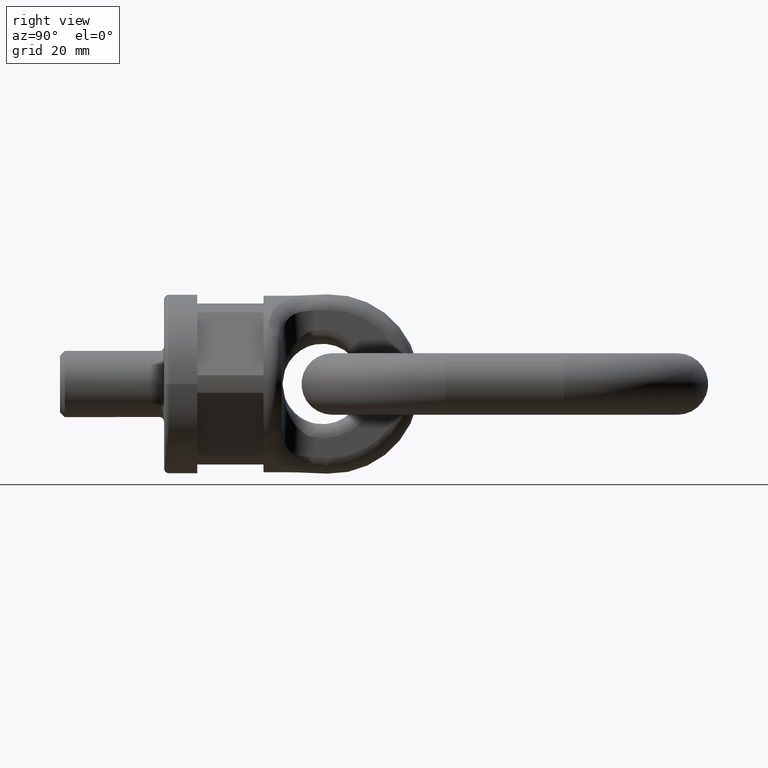
[diagram: clean part render]
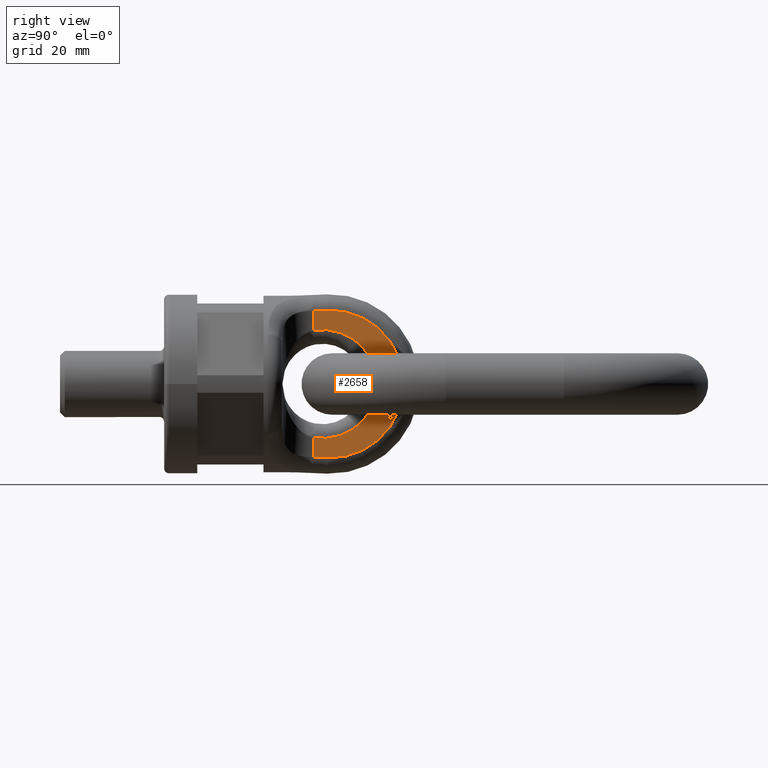
[diagram: same view with one face highlighted and labeled with its STEP entity id]
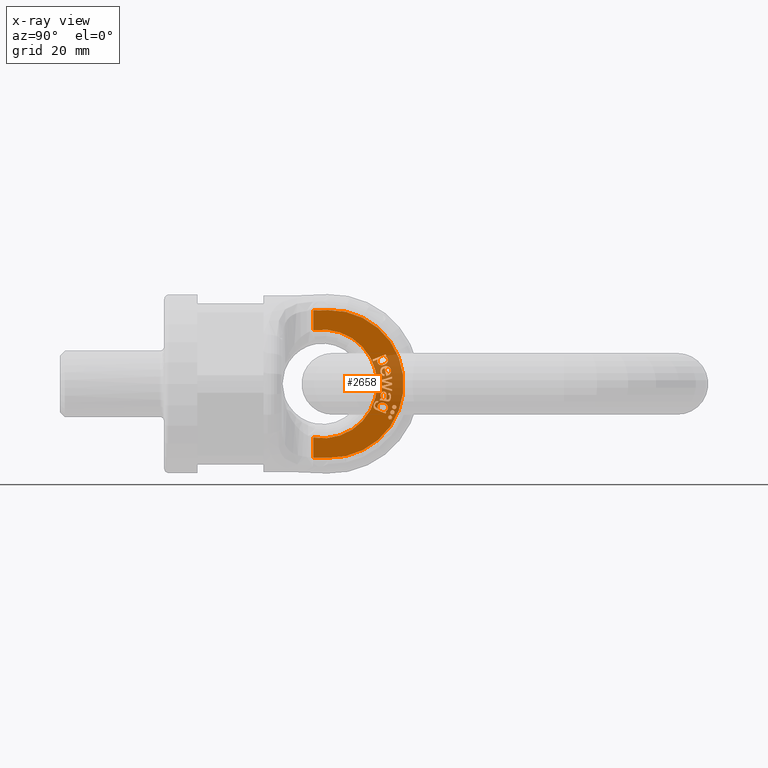
[diagram: x-ray of the same camera — body ghosted, the highlighted face saturated]
A machine part, right view. The second image highlights one B-rep face of the part: STEP entity #2658.
The next image is the same camera in x-ray: the body ghosted, the highlighted face saturated — about 22% of this face is hidden behind the body in this view.
In plain terms, the highlighted planar face has unit normal (1, -0, 0).
Its self-contained STEP definition (entity closure, byte-faithful):
#308=B_SPLINE_CURVE_WITH_KNOTS('',3,(#6660,#6661,#6662,#6663,#6664,#6665),
 .UNSPECIFIED.,.F.,.F.,(4,2,4),(0.,0.670501232539029,1.),.UNSPECIFIED.);
#309=B_SPLINE_CURVE_WITH_KNOTS('',3,(#6667,#6668,#6669,#6670),
 .UNSPECIFIED.,.F.,.F.,(4,4),(0.,1.),.UNSPECIFIED.);
#310=B_SPLINE_CURVE_WITH_KNOTS('',3,(#6672,#6673,#6674,#6675,#6676,#6677),
 .UNSPECIFIED.,.F.,.F.,(4,2,4),(0.,0.470198675496691,1.),.UNSPECIFIED.);
#311=B_SPLINE_CURVE_WITH_KNOTS('',3,(#6679,#6680,#6681,#6682),
 .UNSPECIFIED.,.F.,.F.,(4,4),(0.,1.),.UNSPECIFIED.);
#312=B_SPLINE_CURVE_WITH_KNOTS('',3,(#6686,#6687,#6688,#6689),
 .UNSPECIFIED.,.F.,.F.,(4,4),(0.,1.),.UNSPECIFIED.);
#313=B_SPLINE_CURVE_WITH_KNOTS('',3,(#6691,#6692,#6693,#6694,#6695,#6696),
 .UNSPECIFIED.,.F.,.F.,(4,2,4),(0.,0.44419642857143,1.),.UNSPECIFIED.);
#314=B_SPLINE_CURVE_WITH_KNOTS('',3,(#6698,#6699,#6700,#6701,#6702,#6703),
 .UNSPECIFIED.,.F.,.F.,(4,2,4),(0.,0.499999999999989,1.),.UNSPECIFIED.);
#315=B_SPLINE_CURVE_WITH_KNOTS('',3,(#6705,#6706,#6707,#6708,#6709,#6710,
#6711,#6712,#6713,#6714,#6715,#6716,#6717,#6718),.UNSPECIFIED.,.F.,.F.,
(4,2,2,2,2,2,4),(0.,0.149537296690972,0.323681996634885,0.497826696578798,
0.672812675266404,0.84779865395401,1.),.UNSPECIFIED.);
#316=B_SPLINE_CURVE_WITH_KNOTS('',3,(#6723,#6724,#6725,#6726),
 .UNSPECIFIED.,.F.,.F.,(4,4),(0.,1.),.UNSPECIFIED.);
#317=B_SPLINE_CURVE_WITH_KNOTS('',3,(#6731,#6732,#6733,#6734),
 .UNSPECIFIED.,.F.,.F.,(4,4),(0.,1.),.UNSPECIFIED.);
#318=B_SPLINE_CURVE_WITH_KNOTS('',3,(#6736,#6737,#6738,#6739,#6740,#6741),
 .UNSPECIFIED.,.F.,.F.,(4,2,4),(0.,0.565320665083137,1.),.UNSPECIFIED.);
#319=B_SPLINE_CURVE_WITH_KNOTS('',3,(#6743,#6744,#6745,#6746),
 .UNSPECIFIED.,.F.,.F.,(4,4),(0.,1.),.UNSPECIFIED.);
#320=B_SPLINE_CURVE_WITH_KNOTS('',3,(#6750,#6751,#6752,#6753),
 .UNSPECIFIED.,.F.,.F.,(4,4),(0.,1.),.UNSPECIFIED.);
#321=B_SPLINE_CURVE_WITH_KNOTS('',3,(#6755,#6756,#6757,#6758,#6759,#6760),
 .UNSPECIFIED.,.F.,.F.,(4,2,4),(0.,0.429530201342282,1.),.UNSPECIFIED.);
#322=B_SPLINE_CURVE_WITH_KNOTS('',3,(#6762,#6763,#6764,#6765,#6766,#6767,
#6768,#6769,#6770,#6771,#6772,#6773),.UNSPECIFIED.,.F.,.F.,(4,2,2,2,2,4),
(0.,0.253866185683644,0.504362466247593,0.754858746811536,0.877429373405769,
1.),.UNSPECIFIED.);
#323=B_SPLINE_CURVE_WITH_KNOTS('',3,(#6787,#6788,#6789,#6790),
 .UNSPECIFIED.,.F.,.F.,(4,4),(0.,1.),.UNSPECIFIED.);
#324=B_SPLINE_CURVE_WITH_KNOTS('',3,(#6794,#6795,#6796,#6797),
 .UNSPECIFIED.,.F.,.F.,(4,4),(0.,1.),.UNSPECIFIED.);
#325=B_SPLINE_CURVE_WITH_KNOTS('',3,(#6807,#6808,#6809,#6810),
 .UNSPECIFIED.,.F.,.F.,(4,4),(0.,1.),.UNSPECIFIED.);
#326=B_SPLINE_CURVE_WITH_KNOTS('',3,(#6812,#6813,#6814,#6815),
 .UNSPECIFIED.,.F.,.F.,(4,4),(0.,1.),.UNSPECIFIED.);
#327=B_SPLINE_CURVE_WITH_KNOTS('',3,(#6837,#6838,#6839,#6840),
 .UNSPECIFIED.,.F.,.F.,(4,4),(0.,1.),.UNSPECIFIED.);
#328=B_SPLINE_CURVE_WITH_KNOTS('',3,(#6845,#6846,#6847,#6848),
 .UNSPECIFIED.,.F.,.F.,(4,4),(0.,1.),.UNSPECIFIED.);
#329=B_SPLINE_CURVE_WITH_KNOTS('',3,(#6853,#6854,#6855,#6856),
 .UNSPECIFIED.,.F.,.F.,(4,4),(0.,1.),.UNSPECIFIED.);
#330=B_SPLINE_CURVE_WITH_KNOTS('',3,(#6858,#6859,#6860,#6861,#6862,#6863,
#6864,#6865,#6866,#6867),.UNSPECIFIED.,.F.,.F.,(4,2,2,2,4),(0.,0.296954694318529,
0.533565653962701,0.771641518085901,1.),.UNSPECIFIED.);
#331=B_SPLINE_CURVE_WITH_KNOTS('',3,(#6869,#6870,#6871,#6872),
 .UNSPECIFIED.,.F.,.F.,(4,4),(0.,1.),.UNSPECIFIED.);
#332=B_SPLINE_CURVE_WITH_KNOTS('',3,(#6876,#6877,#6878,#6879),
 .UNSPECIFIED.,.F.,.F.,(4,4),(0.,1.),.UNSPECIFIED.);
#333=B_SPLINE_CURVE_WITH_KNOTS('',3,(#6881,#6882,#6883,#6884),
 .UNSPECIFIED.,.F.,.F.,(4,4),(0.,1.),.UNSPECIFIED.);
#334=B_SPLINE_CURVE_WITH_KNOTS('',3,(#6886,#6887,#6888,#6889),
 .UNSPECIFIED.,.F.,.F.,(4,4),(0.,1.),.UNSPECIFIED.);
#335=B_SPLINE_CURVE_WITH_KNOTS('',3,(#6891,#6892,#6893,#6894),
 .UNSPECIFIED.,.F.,.F.,(4,4),(0.,1.),.UNSPECIFIED.);
#336=B_SPLINE_CURVE_WITH_KNOTS('',3,(#6896,#6897,#6898,#6899,#6900,#6901),
 .UNSPECIFIED.,.F.,.F.,(4,2,4),(0.,0.440217391304353,1.),.UNSPECIFIED.);
#337=B_SPLINE_CURVE_WITH_KNOTS('',3,(#6903,#6904,#6905,#6906),
 .UNSPECIFIED.,.F.,.F.,(4,4),(0.,1.),.UNSPECIFIED.);
#338=B_SPLINE_CURVE_WITH_KNOTS('',3,(#6910,#6911,#6912,#6913),
 .UNSPECIFIED.,.F.,.F.,(4,4),(0.,1.),.UNSPECIFIED.);
#339=B_SPLINE_CURVE_WITH_KNOTS('',3,(#6915,#6916,#6917,#6918,#6919,#6920),
 .UNSPECIFIED.,.F.,.F.,(4,2,4),(0.,0.523876404494381,1.),.UNSPECIFIED.);
#340=B_SPLINE_CURVE_WITH_KNOTS('',3,(#6922,#6923,#6924,#6925),
 .UNSPECIFIED.,.F.,.F.,(4,4),(0.,1.),.UNSPECIFIED.);
#341=B_SPLINE_CURVE_WITH_KNOTS('',3,(#6927,#6928,#6929,#6930,#6931,#6932,
#6933,#6934),.UNSPECIFIED.,.F.,.F.,(4,2,2,4),(0.,0.269230769230767,0.527644230769239,
1.),.UNSPECIFIED.);
#342=B_SPLINE_CURVE_WITH_KNOTS('',3,(#6938,#6939,#6940,#6941),
 .UNSPECIFIED.,.F.,.F.,(4,4),(0.,1.),.UNSPECIFIED.);
#343=B_SPLINE_CURVE_WITH_KNOTS('',3,(#6943,#6944,#6945,#6946),
 .UNSPECIFIED.,.F.,.F.,(4,4),(0.,1.),.UNSPECIFIED.);
#344=B_SPLINE_CURVE_WITH_KNOTS('',3,(#6948,#6949,#6950,#6951,#6952,#6953,
#6954,#6955,#6956,#6957),.UNSPECIFIED.,.F.,.F.,(4,2,2,2,4),(0.,0.245990994549328,
0.507925849856484,0.769860705163647,1.),.UNSPECIFIED.);
#2057=LINE('',#6657,#2313);
#2058=LINE('',#6684,#2314);
#2059=LINE('',#6720,#2315);
#2060=LINE('',#6722,#2316);
#2061=LINE('',#6729,#2317);
#2062=LINE('',#6748,#2318);
#2063=LINE('',#6780,#2319);
#2064=LINE('',#6785,#2320);
#2065=LINE('',#6798,#2321);
#2066=LINE('',#6801,#2322);
#2067=LINE('',#6803,#2323);
#2068=LINE('',#6805,#2324);
#2069=LINE('',#6817,#2325);
#2070=LINE('',#6819,#2326);
#2071=LINE('',#6821,#2327);
#2072=LINE('',#6823,#2328);
#2073=LINE('',#6825,#2329);
#2074=LINE('',#6827,#2330);
#2075=LINE('',#6829,#2331);
#2076=LINE('',#6831,#2332);
#2077=LINE('',#6833,#2333);
#2078=LINE('',#6835,#2334);
#2079=LINE('',#6842,#2335);
#2080=LINE('',#6844,#2336);
#2081=LINE('',#6851,#2337);
#2082=LINE('',#6874,#2338);
#2083=LINE('',#6908,#2339);
#2084=LINE('',#6935,#2340);
#2085=LINE('',#6959,#2341);
#2086=LINE('',#6961,#2342);
#2087=LINE('',#6963,#2343);
#2088=LINE('',#6965,#2344);
#2089=LINE('',#6967,#2345);
#2090=LINE('',#6969,#2346);
#2313=VECTOR('',#5907,1.);
#2314=VECTOR('',#5908,1.);
#2315=VECTOR('',#5909,1.);
#2316=VECTOR('',#5910,1.);
#2317=VECTOR('',#5911,1.);
#2318=VECTOR('',#5912,1.);
#2319=VECTOR('',#5919,1.);
#2320=VECTOR('',#5922,1.);
#2321=VECTOR('',#5925,1.);
#2322=VECTOR('',#5926,1.);
#2323=VECTOR('',#5927,1.);
#2324=VECTOR('',#5928,1.);
#2325=VECTOR('',#5929,1.);
#2326=VECTOR('',#5930,1.);
#2327=VECTOR('',#5931,1.);
#2328=VECTOR('',#5932,1.);
#2329=VECTOR('',#5933,1.);
#2330=VECTOR('',#5934,1.);
#2331=VECTOR('',#5935,1.);
#2332=VECTOR('',#5936,1.);
#2333=VECTOR('',#5937,1.);
#2334=VECTOR('',#5938,1.);
#2335=VECTOR('',#5939,1.);
#2336=VECTOR('',#5940,1.);
#2337=VECTOR('',#5941,1.);
#2338=VECTOR('',#5942,1.);
#2339=VECTOR('',#5943,1.);
#2340=VECTOR('',#5944,1.);
#2341=VECTOR('',#5945,1.);
#2342=VECTOR('',#5946,1.);
#2343=VECTOR('',#5947,1.);
#2344=VECTOR('',#5948,1.);
#2345=VECTOR('',#5949,1.);
#2346=VECTOR('',#5950,1.);
#2658=ADVANCED_FACE('',(#2999,#3000,#3001,#3002,#3003,#3004,#3005,#3006,
#3007),#2890,.T.);
#2890=PLANE('',#5641);
#2999=FACE_BOUND('',#3085,.T.);
#3000=FACE_BOUND('',#3086,.T.);
#3001=FACE_BOUND('',#3087,.T.);
#3002=FACE_BOUND('',#3088,.T.);
#3003=FACE_BOUND('',#3089,.T.);
#3004=FACE_BOUND('',#3090,.T.);
#3005=FACE_BOUND('',#3091,.T.);
#3006=FACE_BOUND('',#3092,.T.);
#3007=FACE_BOUND('',#3093,.T.);
#3085=EDGE_LOOP('',(#3429,#3430,#3431,#3432,#3433,#3434,#3435,#3436,#3437,
#3438,#3439,#3440));
#3086=EDGE_LOOP('',(#3441,#3442,#3443,#3444,#3445,#3446,#3447,#3448,#3449));
#3087=EDGE_LOOP('',(#3450));
#3088=EDGE_LOOP('',(#3451));
#3089=EDGE_LOOP('',(#3452));
#3090=EDGE_LOOP('',(#3453,#3454,#3455,#3456,#3457,#3458));
#3091=EDGE_LOOP('',(#3459,#3460,#3461,#3462,#3463,#3464,#3465,#3466,#3467,
#3468,#3469,#3470,#3471,#3472,#3473,#3474,#3475,#3476,#3477));
#3092=EDGE_LOOP('',(#3478,#3479,#3480,#3481,#3482,#3483,#3484,#3485,#3486,
#3487,#3488,#3489,#3490,#3491,#3492,#3493,#3494));
#3093=EDGE_LOOP('',(#3495,#3496,#3497,#3498,#3499,#3500,#3501,#3502,#3503,
#3504));
#3429=ORIENTED_EDGE('',*,*,#4976,.T.);
#3430=ORIENTED_EDGE('',*,*,#4977,.T.);
#3431=ORIENTED_EDGE('',*,*,#4978,.T.);
#3432=ORIENTED_EDGE('',*,*,#4979,.T.);
#3433=ORIENTED_EDGE('',*,*,#4980,.T.);
#3434=ORIENTED_EDGE('',*,*,#4981,.T.);
#3435=ORIENTED_EDGE('',*,*,#4982,.T.);
#3436=ORIENTED_EDGE('',*,*,#4983,.T.);
#3437=ORIENTED_EDGE('',*,*,#4984,.T.);
#3438=ORIENTED_EDGE('',*,*,#4985,.T.);
#3439=ORIENTED_EDGE('',*,*,#4986,.T.);
#3440=ORIENTED_EDGE('',*,*,#4987,.T.);
#3441=ORIENTED_EDGE('',*,*,#4988,.T.);
#3442=ORIENTED_EDGE('',*,*,#4989,.T.);
#3443=ORIENTED_EDGE('',*,*,#4990,.T.);
#3444=ORIENTED_EDGE('',*,*,#4991,.T.);
#3445=ORIENTED_EDGE('',*,*,#4992,.T.);
#3446=ORIENTED_EDGE('',*,*,#4993,.T.);
#3447=ORIENTED_EDGE('',*,*,#4994,.T.);
#3448=ORIENTED_EDGE('',*,*,#4995,.T.);
#3449=ORIENTED_EDGE('',*,*,#4996,.T.);
#3450=ORIENTED_EDGE('',*,*,#4997,.T.);
#3451=ORIENTED_EDGE('',*,*,#4998,.T.);
#3452=ORIENTED_EDGE('',*,*,#4999,.T.);
#3453=ORIENTED_EDGE('',*,*,#5000,.T.);
#3454=ORIENTED_EDGE('',*,*,#5001,.T.);
#3455=ORIENTED_EDGE('',*,*,#5002,.T.);
#3456=ORIENTED_EDGE('',*,*,#5003,.T.);
#3457=ORIENTED_EDGE('',*,*,#5004,.T.);
#3458=ORIENTED_EDGE('',*,*,#5005,.T.);
#3459=ORIENTED_EDGE('',*,*,#5006,.T.);
#3460=ORIENTED_EDGE('',*,*,#5007,.T.);
#3461=ORIENTED_EDGE('',*,*,#5008,.T.);
#3462=ORIENTED_EDGE('',*,*,#5009,.T.);
#3463=ORIENTED_EDGE('',*,*,#5010,.T.);
#3464=ORIENTED_EDGE('',*,*,#5011,.T.);
#3465=ORIENTED_EDGE('',*,*,#5012,.T.);
#3466=ORIENTED_EDGE('',*,*,#5013,.T.);
#3467=ORIENTED_EDGE('',*,*,#5014,.T.);
#3468=ORIENTED_EDGE('',*,*,#5015,.T.);
#3469=ORIENTED_EDGE('',*,*,#5016,.T.);
#3470=ORIENTED_EDGE('',*,*,#5017,.T.);
#3471=ORIENTED_EDGE('',*,*,#5018,.T.);
#3472=ORIENTED_EDGE('',*,*,#5019,.T.);
#3473=ORIENTED_EDGE('',*,*,#5020,.T.);
#3474=ORIENTED_EDGE('',*,*,#5021,.T.);
#3475=ORIENTED_EDGE('',*,*,#5022,.T.);
#3476=ORIENTED_EDGE('',*,*,#5023,.T.);
#3477=ORIENTED_EDGE('',*,*,#5024,.T.);
#3478=ORIENTED_EDGE('',*,*,#5025,.T.);
#3479=ORIENTED_EDGE('',*,*,#5026,.T.);
#3480=ORIENTED_EDGE('',*,*,#5027,.T.);
#3481=ORIENTED_EDGE('',*,*,#5028,.T.);
#3482=ORIENTED_EDGE('',*,*,#5029,.T.);
#3483=ORIENTED_EDGE('',*,*,#5030,.T.);
#3484=ORIENTED_EDGE('',*,*,#5031,.T.);
#3485=ORIENTED_EDGE('',*,*,#5032,.T.);
#3486=ORIENTED_EDGE('',*,*,#5033,.T.);
#3487=ORIENTED_EDGE('',*,*,#5034,.T.);
#3488=ORIENTED_EDGE('',*,*,#5035,.T.);
#3489=ORIENTED_EDGE('',*,*,#5036,.T.);
#3490=ORIENTED_EDGE('',*,*,#5037,.T.);
#3491=ORIENTED_EDGE('',*,*,#5038,.T.);
#3492=ORIENTED_EDGE('',*,*,#5039,.T.);
#3493=ORIENTED_EDGE('',*,*,#5040,.T.);
#3494=ORIENTED_EDGE('',*,*,#5041,.T.);
#3495=ORIENTED_EDGE('',*,*,#5042,.T.);
#3496=ORIENTED_EDGE('',*,*,#5043,.T.);
#3497=ORIENTED_EDGE('',*,*,#5044,.T.);
#3498=ORIENTED_EDGE('',*,*,#5045,.T.);
#3499=ORIENTED_EDGE('',*,*,#5046,.T.);
#3500=ORIENTED_EDGE('',*,*,#5047,.T.);
#3501=ORIENTED_EDGE('',*,*,#5048,.T.);
#3502=ORIENTED_EDGE('',*,*,#5049,.T.);
#3503=ORIENTED_EDGE('',*,*,#5050,.T.);
#3504=ORIENTED_EDGE('',*,*,#5051,.T.);
#4566=VERTEX_POINT('',#6658);
#4567=VERTEX_POINT('',#6659);
#4568=VERTEX_POINT('',#6666);
#4569=VERTEX_POINT('',#6671);
#4570=VERTEX_POINT('',#6678);
#4571=VERTEX_POINT('',#6683);
#4572=VERTEX_POINT('',#6685);
#4573=VERTEX_POINT('',#6690);
#4574=VERTEX_POINT('',#6697);
#4575=VERTEX_POINT('',#6704);
#4576=VERTEX_POINT('',#6719);
#4577=VERTEX_POINT('',#6721);
#4578=VERTEX_POINT('',#6727);
#4579=VERTEX_POINT('',#6728);
#4580=VERTEX_POINT('',#6730);
#4581=VERTEX_POINT('',#6735);
#4582=VERTEX_POINT('',#6742);
#4583=VERTEX_POINT('',#6747);
#4584=VERTEX_POINT('',#6749);
#4585=VERTEX_POINT('',#6754);
#4586=VERTEX_POINT('',#6761);
#4587=VERTEX_POINT('',#6775);
#4588=VERTEX_POINT('',#6777);
#4589=VERTEX_POINT('',#6779);
#4590=VERTEX_POINT('',#6781);
#4591=VERTEX_POINT('',#6782);
#4592=VERTEX_POINT('',#6784);
#4593=VERTEX_POINT('',#6786);
#4594=VERTEX_POINT('',#6791);
#4595=VERTEX_POINT('',#6793);
#4596=VERTEX_POINT('',#6799);
#4597=VERTEX_POINT('',#6800);
#4598=VERTEX_POINT('',#6802);
#4599=VERTEX_POINT('',#6804);
#4600=VERTEX_POINT('',#6806);
#4601=VERTEX_POINT('',#6811);
#4602=VERTEX_POINT('',#6816);
#4603=VERTEX_POINT('',#6818);
#4604=VERTEX_POINT('',#6820);
#4605=VERTEX_POINT('',#6822);
#4606=VERTEX_POINT('',#6824);
#4607=VERTEX_POINT('',#6826);
#4608=VERTEX_POINT('',#6828);
#4609=VERTEX_POINT('',#6830);
#4610=VERTEX_POINT('',#6832);
#4611=VERTEX_POINT('',#6834);
#4612=VERTEX_POINT('',#6836);
#4613=VERTEX_POINT('',#6841);
#4614=VERTEX_POINT('',#6843);
#4615=VERTEX_POINT('',#6849);
#4616=VERTEX_POINT('',#6850);
#4617=VERTEX_POINT('',#6852);
#4618=VERTEX_POINT('',#6857);
#4619=VERTEX_POINT('',#6868);
#4620=VERTEX_POINT('',#6873);
#4621=VERTEX_POINT('',#6875);
#4622=VERTEX_POINT('',#6880);
#4623=VERTEX_POINT('',#6885);
#4624=VERTEX_POINT('',#6890);
#4625=VERTEX_POINT('',#6895);
#4626=VERTEX_POINT('',#6902);
#4627=VERTEX_POINT('',#6907);
#4628=VERTEX_POINT('',#6909);
#4629=VERTEX_POINT('',#6914);
#4630=VERTEX_POINT('',#6921);
#4631=VERTEX_POINT('',#6926);
#4632=VERTEX_POINT('',#6936);
#4633=VERTEX_POINT('',#6937);
#4634=VERTEX_POINT('',#6942);
#4635=VERTEX_POINT('',#6947);
#4636=VERTEX_POINT('',#6958);
#4637=VERTEX_POINT('',#6960);
#4638=VERTEX_POINT('',#6962);
#4639=VERTEX_POINT('',#6964);
#4640=VERTEX_POINT('',#6966);
#4641=VERTEX_POINT('',#6968);
#4976=EDGE_CURVE('',#4566,#4567,#2057,.T.);
#4977=EDGE_CURVE('',#4567,#4568,#308,.T.);
#4978=EDGE_CURVE('',#4568,#4569,#309,.T.);
#4979=EDGE_CURVE('',#4569,#4570,#310,.T.);
#4980=EDGE_CURVE('',#4570,#4571,#311,.T.);
#4981=EDGE_CURVE('',#4571,#4572,#2058,.T.);
#4982=EDGE_CURVE('',#4572,#4573,#312,.T.);
#4983=EDGE_CURVE('',#4573,#4574,#313,.T.);
#4984=EDGE_CURVE('',#4574,#4575,#314,.T.);
#4985=EDGE_CURVE('',#4575,#4576,#315,.T.);
#4986=EDGE_CURVE('',#4576,#4577,#2059,.T.);
#4987=EDGE_CURVE('',#4577,#4566,#2060,.T.);
#4988=EDGE_CURVE('',#4578,#4579,#316,.T.);
#4989=EDGE_CURVE('',#4579,#4580,#2061,.T.);
#4990=EDGE_CURVE('',#4580,#4581,#317,.T.);
#4991=EDGE_CURVE('',#4581,#4582,#318,.T.);
#4992=EDGE_CURVE('',#4582,#4583,#319,.T.);
#4993=EDGE_CURVE('',#4583,#4584,#2062,.T.);
#4994=EDGE_CURVE('',#4584,#4585,#320,.T.);
#4995=EDGE_CURVE('',#4585,#4586,#321,.T.);
#4996=EDGE_CURVE('',#4586,#4578,#322,.T.);
#4997=EDGE_CURVE('',#4587,#4587,#5548,.T.);
#4998=EDGE_CURVE('',#4588,#4588,#5549,.T.);
#4999=EDGE_CURVE('',#4589,#4589,#5550,.T.);
#5000=EDGE_CURVE('',#4590,#4591,#2063,.T.);
#5001=EDGE_CURVE('',#4591,#4592,#5551,.T.);
#5002=EDGE_CURVE('',#4592,#4593,#2064,.T.);
#5003=EDGE_CURVE('',#4593,#4594,#323,.T.);
#5004=EDGE_CURVE('',#4594,#4595,#5552,.T.);
#5005=EDGE_CURVE('',#4595,#4590,#324,.T.);
#5006=EDGE_CURVE('',#4596,#4597,#2065,.T.);
#5007=EDGE_CURVE('',#4597,#4598,#2066,.T.);
#5008=EDGE_CURVE('',#4598,#4599,#2067,.T.);
#5009=EDGE_CURVE('',#4599,#4600,#2068,.T.);
#5010=EDGE_CURVE('',#4600,#4601,#325,.T.);
#5011=EDGE_CURVE('',#4601,#4602,#326,.T.);
#5012=EDGE_CURVE('',#4602,#4603,#2069,.T.);
#5013=EDGE_CURVE('',#4603,#4604,#2070,.T.);
#5014=EDGE_CURVE('',#4604,#4605,#2071,.T.);
#5015=EDGE_CURVE('',#4605,#4606,#2072,.T.);
#5016=EDGE_CURVE('',#4606,#4607,#2073,.T.);
#5017=EDGE_CURVE('',#4607,#4608,#2074,.T.);
#5018=EDGE_CURVE('',#4608,#4609,#2075,.T.);
#5019=EDGE_CURVE('',#4609,#4610,#2076,.T.);
#5020=EDGE_CURVE('',#4610,#4611,#2077,.T.);
#5021=EDGE_CURVE('',#4611,#4612,#2078,.T.);
#5022=EDGE_CURVE('',#4612,#4613,#327,.T.);
#5023=EDGE_CURVE('',#4613,#4614,#2079,.T.);
#5024=EDGE_CURVE('',#4614,#4596,#2080,.T.);
#5025=EDGE_CURVE('',#4615,#4616,#328,.T.);
#5026=EDGE_CURVE('',#4616,#4617,#2081,.T.);
#5027=EDGE_CURVE('',#4617,#4618,#329,.T.);
#5028=EDGE_CURVE('',#4618,#4619,#330,.T.);
#5029=EDGE_CURVE('',#4619,#4620,#331,.T.);
#5030=EDGE_CURVE('',#4620,#4621,#2082,.T.);
#5031=EDGE_CURVE('',#4621,#4622,#332,.T.);
#5032=EDGE_CURVE('',#4622,#4623,#333,.T.);
#5033=EDGE_CURVE('',#4623,#4624,#334,.T.);
#5034=EDGE_CURVE('',#4624,#4625,#335,.T.);
#5035=EDGE_CURVE('',#4625,#4626,#336,.T.);
#5036=EDGE_CURVE('',#4626,#4627,#337,.T.);
#5037=EDGE_CURVE('',#4627,#4628,#2083,.T.);
#5038=EDGE_CURVE('',#4628,#4629,#338,.T.);
#5039=EDGE_CURVE('',#4629,#4630,#339,.T.);
#5040=EDGE_CURVE('',#4630,#4631,#340,.T.);
#5041=EDGE_CURVE('',#4631,#4615,#341,.T.);
#5042=EDGE_CURVE('',#4632,#4633,#2084,.T.);
#5043=EDGE_CURVE('',#4633,#4634,#342,.T.);
#5044=EDGE_CURVE('',#4634,#4635,#343,.T.);
#5045=EDGE_CURVE('',#4635,#4636,#344,.T.);
#5046=EDGE_CURVE('',#4636,#4637,#2085,.T.);
#5047=EDGE_CURVE('',#4637,#4638,#2086,.T.);
#5048=EDGE_CURVE('',#4638,#4639,#2087,.T.);
#5049=EDGE_CURVE('',#4639,#4640,#2088,.T.);
#5050=EDGE_CURVE('',#4640,#4641,#2089,.T.);
#5051=EDGE_CURVE('',#4641,#4632,#2090,.T.);
#5548=CIRCLE('',#5636,0.450000000000001);
#5549=CIRCLE('',#5637,0.45);
#5550=CIRCLE('',#5638,0.45);
#5551=CIRCLE('',#5639,11.5);
#5552=CIRCLE('',#5640,15.612494995996);
#5636=AXIS2_PLACEMENT_3D('',#6774,#5913,#5914);
#5637=AXIS2_PLACEMENT_3D('',#6776,#5915,#5916);
#5638=AXIS2_PLACEMENT_3D('',#6778,#5917,#5918);
#5639=AXIS2_PLACEMENT_3D('',#6783,#5920,#5921);
#5640=AXIS2_PLACEMENT_3D('',#6792,#5923,#5924);
#5641=AXIS2_PLACEMENT_3D('',#6970,#5951,#5952);
#5907=DIRECTION('',(-1.32154319447918E-16,-0.368211928977285,-0.929741886417315));
#5908=DIRECTION('',(-1.80752887757182E-16,-0.503618570678019,-0.863926116787905));
#5909=DIRECTION('',(-1.32154319448104E-16,-0.368211928977806,-0.929741886417109));
#5910=DIRECTION('',(3.33692084889737E-16,0.929741886417306,-0.368211928977306));
#5911=DIRECTION('',(-7.21467361598864E-17,-0.201017182047663,0.979587715583253));
#5912=DIRECTION('',(2.91781443365318E-17,0.0812969326694324,-0.996689926074575));
#5913=DIRECTION('',(-1.,3.58908305374512E-16,0.));
#5914=DIRECTION('',(0.,0.999999999999995,0.));
#5915=DIRECTION('',(-1.,3.58908305374512E-16,0.));
#5916=DIRECTION('',(0.,0.999999999999997,0.));
#5917=DIRECTION('',(-1.,3.58908305374512E-16,0.));
#5918=DIRECTION('',(0.,0.999999999999997,0.));
#5919=DIRECTION('',(0.,0.,-1.));
#5920=DIRECTION('',(-1.,3.58908305374512E-16,0.));
#5921=DIRECTION('',(3.77113799125393E-16,1.,0.));
#5922=DIRECTION('',(0.,0.,-1.));
#5923=DIRECTION('',(1.,-3.58908305374512E-16,0.));
#5924=DIRECTION('',(3.33333681084611E-16,1.,0.));
#5925=DIRECTION('',(1.76465902991805E-19,0.000491674058107033,-0.999999879128303));
#5926=DIRECTION('',(-3.41947414782585E-16,-0.952743109206603,0.303777168100788));
#5927=DIRECTION('',(-1.76465903001513E-19,-0.000491674058134083,0.999999879128303));
#5928=DIRECTION('',(3.4660258210775E-16,0.965713461955355,0.259610302950794));
#5929=DIRECTION('',(-1.76465903408453E-19,-0.000491674059267909,0.999999879128302));
#5930=DIRECTION('',(-3.47147792690959E-16,-0.967232542386331,0.253892120690806));
#5931=DIRECTION('',(-1.76465903006843E-19,-0.000491674058148933,0.999999879128303));
#5932=DIRECTION('',(3.4251295630942E-16,0.954318836261024,0.298790158401183));
#5933=DIRECTION('',(1.76465903001513E-19,0.000491674058134082,-0.999999879128303));
#5934=DIRECTION('',(-3.45584888413145E-16,-0.962877936336791,-0.269937177350218));
#5935=DIRECTION('',(3.47763849994615E-16,0.968949017860515,-0.247260592871456));
#5936=DIRECTION('',(3.46018935028431E-16,0.964087288722306,-0.265585578908329));
#5937=DIRECTION('',(1.76465902990001E-19,0.000491674058102009,-0.999999879128303));
#5938=DIRECTION('',(-3.47180396192644E-16,-0.967323383142026,-0.253545799465631));
#5939=DIRECTION('',(1.76465903118525E-19,0.000491674058460106,-0.999999879128303));
#5940=DIRECTION('',(3.4382948948209E-16,0.957986996492914,-0.286811636009571));
#5941=DIRECTION('',(7.18009736580969E-17,0.200053809240147,0.979784911808968));
#5942=DIRECTION('',(-1.99009742077022E-17,-0.055448631056158,-0.998461541229305));
#5943=DIRECTION('',(1.15809186211702E-16,0.322670677935017,0.946511296076786));
#5944=DIRECTION('',(1.3248239099663E-16,0.369126010774223,-0.929379356436277));
#5945=DIRECTION('',(-1.32482390996601E-16,-0.369126010774142,0.929379356436309));
#5946=DIRECTION('',(-3.33561969868659E-16,-0.929379356436445,-0.369126010773801));
#5947=DIRECTION('',(-1.32482390996478E-16,-0.369126010773798,0.929379356436446));
#5948=DIRECTION('',(3.33561969868658E-16,0.929379356436444,0.369126010773803));
#5949=DIRECTION('',(1.32482390996468E-16,0.369126010773771,-0.929379356436457));
#5950=DIRECTION('',(-3.33561969868657E-16,-0.929379356436439,-0.369126010773815));
#5951=DIRECTION('',(1.,-3.58908305374512E-16,0.));
#5952=DIRECTION('',(3.59087759527199E-16,1.,0.));
#6657=CARTESIAN_POINT('',(6.50000000000001,57.074716069725,19.6822995267498));
#6658=CARTESIAN_POINT('',(6.5,46.932920482924,-5.92592068143586));
#6659=CARTESIAN_POINT('',(6.5,46.8055426854071,-6.24755196068323));
#6660=CARTESIAN_POINT('',(6.5,46.8055426854071,-6.24755196068323));
#6661=CARTESIAN_POINT('',(6.5,46.2232945048111,-6.01696029986552));
#6662=CARTESIAN_POINT('',(6.5,45.6410463242151,-5.7863686390478));
#6663=CARTESIAN_POINT('',(6.5,44.7726688293803,-5.44245926255864));
#6664=CARTESIAN_POINT('',(6.5,44.5701083795445,-5.32864171764067));
#6665=CARTESIAN_POINT('',(6.5,44.4511167941118,-5.21432434347617));
#6666=CARTESIAN_POINT('',(6.50000000000001,44.4511167941118,-5.21432434347617));
#6667=CARTESIAN_POINT('',(6.50000000000001,44.4511167941118,-5.21432434347617));
#6668=CARTESIAN_POINT('',(6.50000000000001,44.3328387481161,-5.1002895571313));
#6669=CARTESIAN_POINT('',(6.50000000000001,44.264071112842,-4.95294874637929));
#6670=CARTESIAN_POINT('',(6.50000000000001,44.2442388192263,-4.77375397117159));
#6671=CARTESIAN_POINT('',(6.50000000000001,44.2442388192263,-4.77375397117159));
#6672=CARTESIAN_POINT('',(6.50000000000001,44.2442388192263,-4.77375397117159));
#6673=CARTESIAN_POINT('',(6.50000000000001,44.2239805207051,-4.59355057816853));
#6674=CARTESIAN_POINT('',(6.50000000000001,44.2548942773903,-4.40085693401134));
#6675=CARTESIAN_POINT('',(6.50000000000001,44.4285651345014,-3.96233482867181));
#6676=CARTESIAN_POINT('',(6.50000000000001,44.5559981544769,-3.78854856034621));
#6677=CARTESIAN_POINT('',(6.50000000000001,44.7192791492082,-3.67431423372323));
#6678=CARTESIAN_POINT('',(6.50000000000001,44.7192791492082,-3.67431423372323));
#6679=CARTESIAN_POINT('',(6.50000000000001,44.7192791492082,-3.67431423372323));
#6680=CARTESIAN_POINT('',(6.50000000000001,44.882134139034,-3.5590712893049));
#6681=CARTESIAN_POINT('',(6.50000000000001,45.0788674882101,-3.54795507385145));
#6682=CARTESIAN_POINT('',(6.50000000000001,45.3093407263627,-3.63923093959179));
#6683=CARTESIAN_POINT('',(6.50000000000001,45.3093407263627,-3.63923093959179));
#6684=CARTESIAN_POINT('',(6.50000000000001,58.1903223497401,18.4572863101969));
#6685=CARTESIAN_POINT('',(6.5,45.1239747951536,-3.95721458526757));
#6686=CARTESIAN_POINT('',(6.50000000000001,45.1239747951536,-3.95721458526757));
#6687=CARTESIAN_POINT('',(6.50000000000001,45.0124817974704,-3.92817753970587));
#6688=CARTESIAN_POINT('',(6.50000000000001,44.9144507050324,-3.94226759237821));
#6689=CARTESIAN_POINT('',(6.50000000000001,44.8301690523715,-3.99875871330885));
#6690=CARTESIAN_POINT('',(6.50000000000001,44.8301690523715,-3.99875871330885));
#6691=CARTESIAN_POINT('',(6.50000000000001,44.8301690523715,-3.99875871330885));
#6692=CARTESIAN_POINT('',(6.50000000000001,44.7463134046159,-4.05625845203486));
#6693=CARTESIAN_POINT('',(6.50000000000001,44.6752061226686,-4.15660270117527));
#6694=CARTESIAN_POINT('',(6.50000000000001,44.5463906524935,-4.48186413030129));
#6695=CARTESIAN_POINT('',(6.50000000000001,44.530449879022,-4.62841356468484));
#6696=CARTESIAN_POINT('',(6.50000000000001,44.5691633564892,-4.74117441165184));
#6697=CARTESIAN_POINT('',(6.50000000000001,44.5691633564892,-4.74117441165184));
#6698=CARTESIAN_POINT('',(6.50000000000001,44.5691633564892,-4.74117441165184));
#6699=CARTESIAN_POINT('',(6.50000000000001,44.6088779079249,-4.85349181646274));
#6700=CARTESIAN_POINT('',(6.50000000000001,44.67622830693,-4.93979824655385));
#6701=CARTESIAN_POINT('',(6.50000000000001,44.8696300268901,-5.06006744862351));
#6702=CARTESIAN_POINT('',(6.50000000000001,45.0093135048167,-5.12630599005351));
#6703=CARTESIAN_POINT('',(6.50000000000001,45.19197960069,-5.19864847187868));
#6704=CARTESIAN_POINT('',(6.50000000000001,45.19197960069,-5.19864847187868));
#6705=CARTESIAN_POINT('',(6.50000000000001,45.19197960069,-5.19864847187868));
#6706=CARTESIAN_POINT('',(6.50000000000001,45.0748290028941,-4.97755245765918));
#6707=CARTESIAN_POINT('',(6.50000000000001,45.0626852339641,-4.75184827222836));
#6708=CARTESIAN_POINT('',(6.50000000000001,45.2593588536066,-4.25524376883061));
#6709=CARTESIAN_POINT('',(6.50000000000001,45.441510438405,-4.07877083948483));
#6710=CARTESIAN_POINT('',(6.50000000000001,45.9579162932475,-3.90868924418875));
#6711=CARTESIAN_POINT('',(6.50000000000001,46.2345766531523,-3.92502753901591));
#6712=CARTESIAN_POINT('',(6.50000000000001,46.8268143858663,-4.15957542930843));
#6713=CARTESIAN_POINT('',(6.50000000000001,47.0433588410898,-4.33604464009848));
#6714=CARTESIAN_POINT('',(6.50000000000001,47.3138697024583,-4.80769530163908));
#6715=CARTESIAN_POINT('',(6.50000000000001,47.3267913247096,-5.0647840012859));
#6716=CARTESIAN_POINT('',(6.50000000000001,47.1203415309914,-5.58607352385839));
#6717=CARTESIAN_POINT('',(6.50000000000001,46.9465178538264,-5.74568690942597));
#6718=CARTESIAN_POINT('',(6.50000000000001,46.6941934936274,-5.82213708084844));
#6719=CARTESIAN_POINT('',(6.50000000000001,46.6941934936274,-5.82213708084844));
#6720=CARTESIAN_POINT('',(6.50000000000001,56.8328262005941,19.7780967975969));
#6721=CARTESIAN_POINT('',(6.5,46.6910306137794,-5.83012341058144));
#6722=CARTESIAN_POINT('',(6.5,43.8582044131985,-4.70822020818536));
#6723=CARTESIAN_POINT('',(6.50000000000001,47.6429959180823,2.0209591237638));
#6724=CARTESIAN_POINT('',(6.50000000000001,47.5007340249552,1.88574305150839));
#6725=CARTESIAN_POINT('',(6.50000000000001,47.2601519948415,1.78296406966141));
#6726=CARTESIAN_POINT('',(6.50000000000001,46.9218446487077,1.71354140510158));
#6727=CARTESIAN_POINT('',(6.50000000000001,47.6429959180823,2.0209591237638));
#6728=CARTESIAN_POINT('',(6.50000000000001,46.9218446487077,1.71354140510158));
#6729=CARTESIAN_POINT('',(6.5,43.429776513615,18.7309277412875));
#6730=CARTESIAN_POINT('',(6.50000000000001,46.5890615998827,3.33524450163558));
#6731=CARTESIAN_POINT('',(6.50000000000001,46.5890615998827,3.33524450163558));
#6732=CARTESIAN_POINT('',(6.50000000000001,46.3568895085188,3.27165809580317));
#6733=CARTESIAN_POINT('',(6.50000000000001,46.1911813271418,3.16670601540971));
#6734=CARTESIAN_POINT('',(6.50000000000001,46.0920940288879,3.01962330616439));
#6735=CARTESIAN_POINT('',(6.50000000000001,46.0920940288879,3.01962330616439));
#6736=CARTESIAN_POINT('',(6.50000000000001,46.0920940288879,3.01962330616439));
#6737=CARTESIAN_POINT('',(6.50000000000001,45.9922549365315,2.87238632433116));
#6738=CARTESIAN_POINT('',(6.50000000000001,45.9618454742363,2.70751006824972));
#6739=CARTESIAN_POINT('',(6.50000000000001,46.0279311645925,2.38546431181537));
#6740=CARTESIAN_POINT('',(6.50000000000001,46.0881911444941,2.27506643524913));
#6741=CARTESIAN_POINT('',(6.50000000000001,46.1805798413321,2.19517654421504));
#6742=CARTESIAN_POINT('',(6.50000000000001,46.1805798413321,2.19517654421504));
#6743=CARTESIAN_POINT('',(6.50000000000001,46.1805798413321,2.19517654421504));
#6744=CARTESIAN_POINT('',(6.50000000000001,46.2731255113063,2.11452169889014));
#6745=CARTESIAN_POINT('',(6.50000000000001,46.3977998982168,2.0643748390974));
#6746=CARTESIAN_POINT('',(6.50000000000001,46.5555117693024,2.04412528313392));
#6747=CARTESIAN_POINT('',(6.50000000000001,46.5555117693024,2.04412528313392));
#6748=CARTESIAN_POINT('',(6.5,45.0768631329173,20.1721671624189));
#6749=CARTESIAN_POINT('',(6.5,46.5870400852141,1.65759218989813));
#6750=CARTESIAN_POINT('',(6.50000000000001,46.5870400852141,1.65759218989813));
#6751=CARTESIAN_POINT('',(6.50000000000001,46.3519511799692,1.67312384714199));
#6752=CARTESIAN_POINT('',(6.50000000000001,46.1589706617727,1.75070652302441));
#6753=CARTESIAN_POINT('',(6.50000000000001,46.0067519155559,1.88926671807873));
#6754=CARTESIAN_POINT('',(6.50000000000001,46.0067519155559,1.88926671807873));
#6755=CARTESIAN_POINT('',(6.5,46.0067519155559,1.88926671807873));
#6756=CARTESIAN_POINT('',(6.5,45.8537813752365,2.02767264054514));
#6757=CARTESIAN_POINT('',(6.5,45.7524778137618,2.21972790174858));
#6758=CARTESIAN_POINT('',(6.5,45.6355328272644,2.78961884840793));
#6759=CARTESIAN_POINT('',(6.5,45.6811509793609,3.06363910938788));
#6760=CARTESIAN_POINT('',(6.5,45.8398526605576,3.28672833033806));
#6761=CARTESIAN_POINT('',(6.5,45.8398526605576,3.28672833033806));
#6762=CARTESIAN_POINT('',(6.50000000000001,45.8398526605576,3.28672833033806));
#6763=CARTESIAN_POINT('',(6.50000000000001,45.9978025476519,3.50966327870033));
#6764=CARTESIAN_POINT('',(6.50000000000001,46.2466044718003,3.6563788348947));
#6765=CARTESIAN_POINT('',(6.50000000000001,46.9217155758631,3.79491561883852));
#6766=CARTESIAN_POINT('',(6.50000000000001,47.2120739247788,3.76202759792733));
#6767=CARTESIAN_POINT('',(6.50000000000001,47.7014033927893,3.49255582069034));
#6768=CARTESIAN_POINT('',(6.50000000000001,47.8572329885894,3.26385965731248));
#6769=CARTESIAN_POINT('',(6.50000000000001,47.9556551450108,2.78423331696964));
#6770=CARTESIAN_POINT('',(6.50000000000001,47.9530620645088,2.62506514664089));
#6771=CARTESIAN_POINT('',(6.50000000000001,47.8761992758932,2.30477499654869));
#6772=CARTESIAN_POINT('',(6.50000000000001,47.7860096053119,2.15632946860712));
#6773=CARTESIAN_POINT('',(6.50000000000001,47.6429959180823,2.0209591237638));
#6774=CARTESIAN_POINT('',(6.5,47.7515788599018,-7.05));
#6775=CARTESIAN_POINT('',(6.5,48.2015788599018,-7.05));
#6776=CARTESIAN_POINT('',(6.5,48.2314169127587,-5.98292200705362));
#6777=CARTESIAN_POINT('',(6.5,48.6814169127587,-5.98292200705362));
#6778=CARTESIAN_POINT('',(6.5,48.6314881976402,-4.88344805692415));
#6779=CARTESIAN_POINT('',(6.5,49.0814881976402,-4.88344805692415));
#6780=CARTESIAN_POINT('',(6.5,31.5,-17.5879640283967));
#6781=CARTESIAN_POINT('',(6.5,31.5,15.5261697642409));
#6782=CARTESIAN_POINT('',(6.5,31.5,11.3247516529061));
#6783=CARTESIAN_POINT('',(6.5,33.5,0.));
#6784=CARTESIAN_POINT('',(6.5,31.5,-11.3247516529061));
#6785=CARTESIAN_POINT('',(6.5,31.5,-17.5879640283967));
#6786=CARTESIAN_POINT('',(6.5,31.5,-15.5261697642409));
#6787=CARTESIAN_POINT('',(6.5,31.5,-15.5261697642409));
#6788=CARTESIAN_POINT('',(6.5,32.5304101003301,-15.5531641731923));
#6789=CARTESIAN_POINT('',(6.5,33.5608202897926,-15.5801551800585));
#6790=CARTESIAN_POINT('',(6.5,34.5912305669744,-15.6071428375159));
#6791=CARTESIAN_POINT('',(6.5,34.5912305669744,-15.6071428375159));
#6792=CARTESIAN_POINT('',(6.5,35.,0.));
#6793=CARTESIAN_POINT('',(6.5,34.5912305669744,15.6071428375159));
#6794=CARTESIAN_POINT('',(6.5,34.5912305669744,15.6071428375159));
#6795=CARTESIAN_POINT('',(6.5,33.5608202897926,15.5801551800585));
#6796=CARTESIAN_POINT('',(6.5,32.5304101003301,15.5531641731923));
#6797=CARTESIAN_POINT('',(6.5,31.5,15.5261697642409));
#6798=CARTESIAN_POINT('',(6.5,48.1608707108064,20.8971290512596));
#6799=CARTESIAN_POINT('',(6.5,48.1717072931883,-1.14304348461297));
#6800=CARTESIAN_POINT('',(6.5,48.1718873635728,-1.50928278439393));
#6801=CARTESIAN_POINT('',(6.5,46.9764478964288,-1.12812314917249));
#6802=CARTESIAN_POINT('',(6.5,46.0004031675373,-0.816916381243952));
#6803=CARTESIAN_POINT('',(6.5,45.9897274582701,20.8960615563166));
#6804=CARTESIAN_POINT('',(6.5,46.0002119627366,-0.428031154610861));
#6805=CARTESIAN_POINT('',(6.50000000000001,58.8079670801114,3.01504519995172));
#6806=CARTESIAN_POINT('',(6.5,47.3039538421115,-0.077549528737248));
#6807=CARTESIAN_POINT('',(6.50000000000001,47.3039538421115,-0.077549528737248));
#6808=CARTESIAN_POINT('',(6.50000000000001,47.3031856146051,-0.0759881180185098));
#6809=CARTESIAN_POINT('',(6.50000000000001,47.3622727100441,-0.0611220762779669));
#6810=CARTESIAN_POINT('',(6.50000000000001,47.4796805931427,-0.0337330522250606));
#6811=CARTESIAN_POINT('',(6.50000000000001,47.4796805931427,-0.0337330522250606));
#6812=CARTESIAN_POINT('',(6.50000000000001,47.4796805931427,-0.0337330522250606));
#6813=CARTESIAN_POINT('',(6.50000000000001,47.5970880922959,-0.00556313414277062));
#6814=CARTESIAN_POINT('',(6.50000000000001,47.6607807133193,0.00774338357918124));
#6815=CARTESIAN_POINT('',(6.50000000000001,47.6715251479377,0.00774866633959081));
#6816=CARTESIAN_POINT('',(6.50000000000001,47.6715251479377,0.00774866633959081));
#6817=CARTESIAN_POINT('',(6.5,47.6612545010258,20.8968834028931));
#6818=CARTESIAN_POINT('',(6.5,47.6715209245385,0.016338500662812));
#6819=CARTESIAN_POINT('',(6.5,48.4636010010579,-0.191577260616565));
#6820=CARTESIAN_POINT('',(6.5,45.9997777205087,0.455159992622129));
#6821=CARTESIAN_POINT('',(6.5,45.9897274582698,20.8960615563165));
#6822=CARTESIAN_POINT('',(6.5,45.9995853638719,0.846387901343374));
#6823=CARTESIAN_POINT('',(6.50000000000001,59.0038670496131,4.91793216636031));
#6824=CARTESIAN_POINT('',(6.5,48.1703949678699,1.52605230782059));
#6825=CARTESIAN_POINT('',(6.5,48.1608707108058,20.8971290512594));
#6826=CARTESIAN_POINT('',(6.5,48.1705861726705,1.1371670811875));
#6827=CARTESIAN_POINT('',(6.50000000000001,58.7119208626589,4.09236838380007));
#6828=CARTESIAN_POINT('',(6.5,46.4517131440798,0.655291117421593));
#6829=CARTESIAN_POINT('',(6.5,48.6882281036975,0.0845675760509437));
#6830=CARTESIAN_POINT('',(6.5,46.7449195759961,0.580469434491931));
#6831=CARTESIAN_POINT('',(6.5,48.28548915166,0.156075225183894));
#6832=CARTESIAN_POINT('',(6.5,48.171053050256,0.187599941456891));
#6833=CARTESIAN_POINT('',(6.5,48.1608707108065,20.8971290512596));
#6834=CARTESIAN_POINT('',(6.5,48.1712427192751,-0.198161709058666));
#6835=CARTESIAN_POINT('',(6.50000000000001,58.7998471928606,2.58770914387776));
#6836=CARTESIAN_POINT('',(6.5,47.0340138521451,-0.49624155217722));
#6837=CARTESIAN_POINT('',(6.5,47.0340138521451,-0.49624155217722));
#6838=CARTESIAN_POINT('',(6.5,46.7201639515201,-0.579951545393243));
#6839=CARTESIAN_POINT('',(6.5,46.5421355895329,-0.625330941984286));
#6840=CARTESIAN_POINT('',(6.5,46.499929534074,-0.633941530009116));
#6841=CARTESIAN_POINT('',(6.5,46.499929534074,-0.633941530009116));
#6842=CARTESIAN_POINT('',(6.5,46.4893436680195,20.8963072046732));
#6843=CARTESIAN_POINT('',(6.5,46.4999337574733,-0.642531364332337));
#6844=CARTESIAN_POINT('',(6.5,47.463972615315,-0.931154866537085));
#6845=CARTESIAN_POINT('',(6.50000000000001,45.8602819002842,-3.45504020347793));
#6846=CARTESIAN_POINT('',(6.50000000000001,45.7571778983043,-3.44594337377584));
#6847=CARTESIAN_POINT('',(6.50000000000001,45.6517993281743,-3.4594952839136));
#6848=CARTESIAN_POINT('',(6.50000000000001,45.5441461898942,-3.49569593389121));
#6849=CARTESIAN_POINT('',(6.50000000000001,45.8602819002842,-3.45504020347793));
#6850=CARTESIAN_POINT('',(6.50000000000001,45.5441461898942,-3.49569593389121));
#6851=CARTESIAN_POINT('',(6.5,50.6643555030649,21.5810764075258));
#6852=CARTESIAN_POINT('',(6.50000000000001,45.6228814953074,-3.11008136067453));
#6853=CARTESIAN_POINT('',(6.50000000000001,45.6228814953074,-3.11008136067453));
#6854=CARTESIAN_POINT('',(6.50000000000001,45.6971470193771,-3.08778572969613));
#6855=CARTESIAN_POINT('',(6.50000000000001,45.7895279785822,-3.08034701206903));
#6856=CARTESIAN_POINT('',(6.50000000000001,45.9007763183652,-3.08791874103133));
#6857=CARTESIAN_POINT('',(6.50000000000001,45.9007763183652,-3.08791874103133));
#6858=CARTESIAN_POINT('',(6.50000000000001,45.9007763183652,-3.08791874103133));
#6859=CARTESIAN_POINT('',(6.50000000000001,45.7427905425352,-2.79902516785675));
#6860=CARTESIAN_POINT('',(6.50000000000001,45.6924787588966,-2.51219147453473));
#6861=CARTESIAN_POINT('',(6.50000000000001,45.7974591661142,-1.99803871024583));
#6862=CARTESIAN_POINT('',(6.50000000000001,45.8906753414327,-1.82892698259808));
#6863=CARTESIAN_POINT('',(6.50000000000001,46.1694510720825,-1.61093223050259));
#6864=CARTESIAN_POINT('',(6.50000000000001,46.3310193168803,-1.57537896631117));
#6865=CARTESIAN_POINT('',(6.50000000000001,46.6919531293656,-1.64907492059764));
#6866=CARTESIAN_POINT('',(6.50000000000001,46.8241122697443,-1.74221082280624));
#6867=CARTESIAN_POINT('',(6.50000000000001,46.912475316915,-1.8925558495088));
#6868=CARTESIAN_POINT('',(6.50000000000001,46.912475316915,-1.8925558495088));
#6869=CARTESIAN_POINT('',(6.50000000000001,46.912475316915,-1.8925558495088));
#6870=CARTESIAN_POINT('',(6.50000000000001,47.0006821432417,-2.04366598449155));
#6871=CARTESIAN_POINT('',(6.50000000000001,47.0316370298589,-2.27952402623457));
#6872=CARTESIAN_POINT('',(6.50000000000001,47.0050275350785,-2.60166019129824));
#6873=CARTESIAN_POINT('',(6.50000000000001,47.0050275350785,-2.60166019129824));
#6874=CARTESIAN_POINT('',(6.5,48.3276639983301,21.2150078928387));
#6875=CARTESIAN_POINT('',(6.5,46.9854209415928,-2.95471542777666));
#6876=CARTESIAN_POINT('',(6.50000000000001,46.9854209415928,-2.95471542777666));
#6877=CARTESIAN_POINT('',(6.50000000000001,46.9788826421421,-3.08648037475921));
#6878=CARTESIAN_POINT('',(6.50000000000001,46.9822945861124,-3.19636680600269));
#6879=CARTESIAN_POINT('',(6.50000000000001,46.9945923863728,-3.28575140482937));
#6880=CARTESIAN_POINT('',(6.50000000000001,46.9945923863728,-3.28575140482937));
#6881=CARTESIAN_POINT('',(6.50000000000001,46.9945923863728,-3.28575140482937));
#6882=CARTESIAN_POINT('',(6.50000000000001,47.1028725301183,-3.30786019111531));
#6883=CARTESIAN_POINT('',(6.50000000000001,47.1803520694918,-3.31969504000022));
#6884=CARTESIAN_POINT('',(6.50000000000001,47.2259666173624,-3.3226326348064));
#6885=CARTESIAN_POINT('',(6.50000000000001,47.2259666173624,-3.3226326348064));
#6886=CARTESIAN_POINT('',(6.5,47.2259666173624,-3.3226326348064));
#6887=CARTESIAN_POINT('',(6.5,47.2724893315197,-3.32495865457048));
#6888=CARTESIAN_POINT('',(6.5,47.3233279117557,-3.31381979176731));
#6889=CARTESIAN_POINT('',(6.5,47.3781699163823,-3.29074626295726));
#6890=CARTESIAN_POINT('',(6.5,47.3781699163823,-3.29074626295726));
#6891=CARTESIAN_POINT('',(6.50000000000001,47.3781699163823,-3.29074626295726));
#6892=CARTESIAN_POINT('',(6.50000000000001,47.4331681418529,-3.26690762586701));
#6893=CARTESIAN_POINT('',(6.50000000000001,47.4822965976705,-3.22194534967671));
#6894=CARTESIAN_POINT('',(6.50000000000001,47.526619670966,-3.15448275106407));
#6895=CARTESIAN_POINT('',(6.50000000000001,47.526619670966,-3.15448275106407));
#6896=CARTESIAN_POINT('',(6.5,47.526619670966,-3.15448275106407));
#6897=CARTESIAN_POINT('',(6.5,47.5716946897042,-3.08717368568953));
#6898=CARTESIAN_POINT('',(6.5,47.6061341420006,-2.99139184906863));
#6899=CARTESIAN_POINT('',(6.5,47.6636234126198,-2.70983200195804));
#6900=CARTESIAN_POINT('',(6.5,47.660513483382,-2.57928508923909));
#6901=CARTESIAN_POINT('',(6.5,47.6213601855847,-2.47565003628262));
#6902=CARTESIAN_POINT('',(6.5,47.6213601855847,-2.47565003628262));
#6903=CARTESIAN_POINT('',(6.50000000000001,47.6213601855847,-2.47565003628262));
#6904=CARTESIAN_POINT('',(6.50000000000001,47.5829588332301,-2.37216851656425));
#6905=CARTESIAN_POINT('',(6.50000000000001,47.489148910428,-2.28686280949858));
#6906=CARTESIAN_POINT('',(6.50000000000001,47.3396179754903,-2.221263131646));
#6907=CARTESIAN_POINT('',(6.50000000000001,47.3396179754903,-2.221263131646));
#6908=CARTESIAN_POINT('',(6.50000000000001,55.0945710548577,20.5268549717442));
#6909=CARTESIAN_POINT('',(6.5,47.4587542233642,-1.87179287575995));
#6910=CARTESIAN_POINT('',(6.50000000000001,47.4587542233642,-1.87179287575995));
#6911=CARTESIAN_POINT('',(6.50000000000001,47.6688511386929,-1.9553380370978));
#6912=CARTESIAN_POINT('',(6.50000000000001,47.8119978729349,-2.09056768426842));
#6913=CARTESIAN_POINT('',(6.50000000000001,47.8877549223354,-2.27579806747331));
#6914=CARTESIAN_POINT('',(6.50000000000001,47.8877549223354,-2.27579806747331));
#6915=CARTESIAN_POINT('',(6.50000000000001,47.8877549223354,-2.27579806747331));
#6916=CARTESIAN_POINT('',(6.50000000000001,47.9642639171786,-2.4611819839163));
#6917=CARTESIAN_POINT('',(6.50000000000001,47.9732270063364,-2.69733174467377));
#6918=CARTESIAN_POINT('',(6.50000000000001,47.8619977653559,-3.24208884017034));
#6919=CARTESIAN_POINT('',(6.50000000000001,47.7853452822036,-3.42568924831345));
#6920=CARTESIAN_POINT('',(6.50000000000001,47.6845596782854,-3.53183460781617));
#6921=CARTESIAN_POINT('',(6.50000000000001,47.6845596782854,-3.53183460781617));
#6922=CARTESIAN_POINT('',(6.50000000000001,47.6845596782854,-3.53183460781617));
#6923=CARTESIAN_POINT('',(6.50000000000001,47.5845260198099,-3.63813350055699));
#6924=CARTESIAN_POINT('',(6.50000000000001,47.4782309785267,-3.69453659020607));
#6925=CARTESIAN_POINT('',(6.50000000000001,47.3650788298371,-3.70012523524514));
#6926=CARTESIAN_POINT('',(6.50000000000001,47.3650788298371,-3.70012523524514));
#6927=CARTESIAN_POINT('',(6.50000000000001,47.3650788298371,-3.70012523524514));
#6928=CARTESIAN_POINT('',(6.50000000000001,47.2525224057461,-3.70663252180249));
#6929=CARTESIAN_POINT('',(6.50000000000001,47.1121044145428,-3.69230788827422));
#6930=CARTESIAN_POINT('',(6.50000000000001,46.7820003652073,-3.62490679674972));
#6931=CARTESIAN_POINT('',(6.50000000000001,46.6203320950316,-3.59189715055891));
#6932=CARTESIAN_POINT('',(6.50000000000001,46.1631492658836,-3.49854894179605));
#6933=CARTESIAN_POINT('',(6.50000000000001,45.9635421231082,-3.46337192489984));
#6934=CARTESIAN_POINT('',(6.50000000000001,45.8602819002842,-3.45504020347793));
#6935=CARTESIAN_POINT('',(6.5,42.498010647396,16.3317002887019));
#6936=CARTESIAN_POINT('',(6.5,46.6699171361145,5.82774322681623));
#6937=CARTESIAN_POINT('',(6.5,46.6730878677747,5.81976001115607));
#6938=CARTESIAN_POINT('',(6.50000000000001,46.6730878677747,5.81976001115607));
#6939=CARTESIAN_POINT('',(6.50000000000001,46.9286770253535,5.77087207136445));
#6940=CARTESIAN_POINT('',(6.50000000000001,47.1085004282033,5.61543078995427));
#6941=CARTESIAN_POINT('',(6.50000000000001,47.2119815796586,5.35488766068192));
#6942=CARTESIAN_POINT('',(6.50000000000001,47.2119815796586,5.35488766068192));
#6943=CARTESIAN_POINT('',(6.50000000000001,47.2119815796586,5.35488766068192));
#6944=CARTESIAN_POINT('',(6.50000000000001,47.3189217111068,5.08563556887122));
#6945=CARTESIAN_POINT('',(6.50000000000001,47.307088209271,4.8347476725817));
#6946=CARTESIAN_POINT('',(6.50000000000001,47.1774825836938,4.60178151427575));
#6947=CARTESIAN_POINT('',(6.50000000000001,47.1774825836938,4.60178151427575));
#6948=CARTESIAN_POINT('',(6.5,47.1774825836938,4.60178151427575));
#6949=CARTESIAN_POINT('',(6.5,47.0475887097839,4.369541102848));
#6950=CARTESIAN_POINT('',(6.5,46.8280765967297,4.19245162833797));
#6951=CARTESIAN_POINT('',(6.5,46.1918475975422,3.93975753654194));
#6952=CARTESIAN_POINT('',(6.5,45.8964924431399,3.92243751639553));
#6953=CARTESIAN_POINT('',(6.5,45.372698661014,4.11435020782325));
#6954=CARTESIAN_POINT('',(6.5,45.1912383749801,4.28846669281599));
#6955=CARTESIAN_POINT('',(6.5,45.0038769586961,4.76020216364336));
#6956=CARTESIAN_POINT('',(6.5,45.0198489718985,4.97156241213317));
#6957=CARTESIAN_POINT('',(6.5,45.1397087397903,5.17293011126304));
#6958=CARTESIAN_POINT('',(6.5,45.1397087397903,5.17293011126304));
#6959=CARTESIAN_POINT('',(6.5,40.9516603444388,15.7175289983284));
#6960=CARTESIAN_POINT('',(6.5,45.1359615114646,5.18236482067958));
#6961=CARTESIAN_POINT('',(6.50000000000001,58.1843011670239,10.3648358223448));
#6962=CARTESIAN_POINT('',(6.5,44.1488079970302,4.79029237331892));
#6963=CARTESIAN_POINT('',(6.5,39.9645068300063,15.3254565509741));
#6964=CARTESIAN_POINT('',(6.5,44.0104487973128,5.13865087485298));
#6965=CARTESIAN_POINT('',(6.50000000000001,58.0459419673065,10.7131943238789));
#6966=CARTESIAN_POINT('',(6.5,46.8042929563009,6.24829522189902));
#6967=CARTESIAN_POINT('',(6.5,42.7583509889946,16.4351008980206));
#6968=CARTESIAN_POINT('',(6.5,46.9302574777103,5.93114383612738));
#6969=CARTESIAN_POINT('',(6.50000000000001,58.1719064887159,10.3960429381075));
#6970=CARTESIAN_POINT('',(6.50000000000001,54.,20.9));